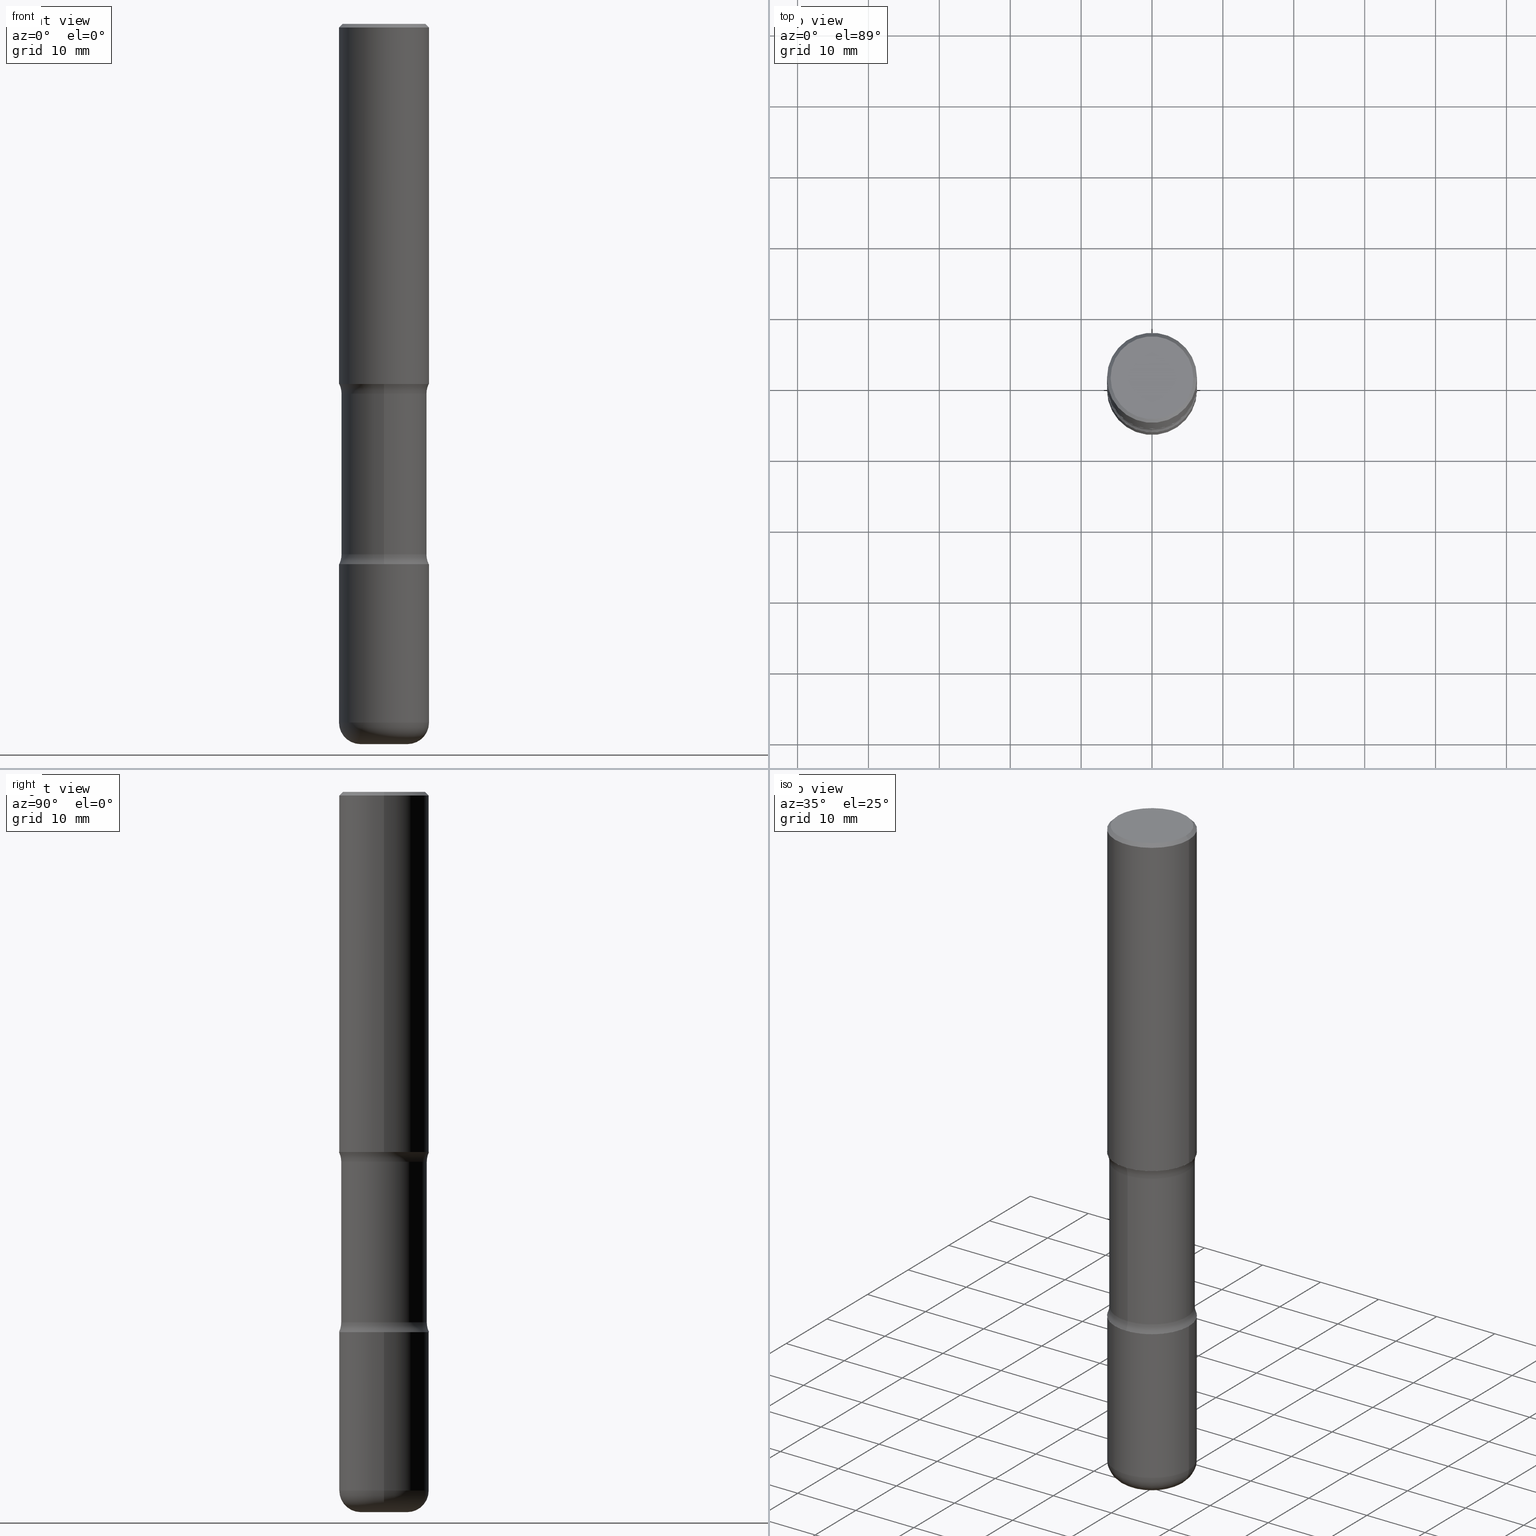
[diagram: canonical four-view strip — front | top / right | iso, engineering-drawing reading convention]
A machine part, canonical four-view strip (front | top / right | iso — engineering-drawing reading convention). The complete STEP part file that produces these views, byte-faithful:
ISO-10303-21;
HEADER;
FILE_DESCRIPTION (( 'STEP AP203' ),
    '1' );
FILE_NAME ('37890.STEP',
    '2024-03-02T01:08:06',
    ( '' ),
    ( '' ),
    'SwSTEP 2.0',
    'SolidWorks 2023',
    '' );
FILE_SCHEMA (( 'CONFIG_CONTROL_DESIGN' ));
ENDSEC;

DATA;
#1 = CARTESIAN_POINT ( 'NONE',  ( 4.976491023364875751E-29, -7.241496556518841686E-15, -2.054486236794258680 ) ) ;
#2 = EDGE_CURVE ( 'NONE', #404, #127, #257, .T. ) ;
#3 = ORIENTED_EDGE ( 'NONE', *, *, #261, .F. ) ;
#4 = CARTESIAN_POINT ( 'NONE',  ( 9.781875224740547508E-29, -1.396592535537258391E-14, -4.000000000000000888 ) ) ;
#5 = EDGE_LOOP ( 'NONE', ( #38, #325 ) ) ;
#6 = CLOSED_SHELL ( 'NONE', ( #153, #385, #218, #281, #236, #399 ) ) ;
#7 = CARTESIAN_POINT ( 'NONE',  ( 9.488418967998331206E-29, -1.354694759471140727E-14, -3.880000000000000782 ) ) ;
#8 = AXIS2_PLACEMENT_3D ( 'NONE', #173, #348, #129 ) ;
#9 = DIRECTION ( 'NONE',  ( -1.000000000000000000, 6.982962677686265922E-15, -4.876176775795935793E-29 ) ) ;
#10 = PLANE ( 'NONE',  #423 ) ;
#11 = MANIFOLD_SOLID_BREP ( 'Body-Move/Copy2[1]', #6 ) ;
#12 =( NAMED_UNIT ( * ) SI_UNIT ( $, .STERADIAN. ) SOLID_ANGLE_UNIT ( ) );
#13 = ORIENTED_EDGE ( 'NONE', *, *, #102, .F. ) ;
#14 = CARTESIAN_POINT ( 'NONE',  ( 0.2500000000000001665, -8.728703347107858632E-15, -2.000000000000000000 ) ) ;
#15 = EDGE_CURVE ( 'NONE', #316, #179, #472, .T. ) ;
#16 = DATE_AND_TIME ( #395, #374 ) ;
#17 =( LENGTH_UNIT ( ) NAMED_UNIT ( * ) SI_UNIT ( $, .METRE. ) );
#18 = EDGE_LOOP ( 'NONE', ( #103, #259, #106, #3 ) ) ;
#19 = CARTESIAN_POINT ( 'NONE',  ( -0.2500000000000000555, 1.776356839400250859E-15, -1.229733772563726866E-29 ) ) ;
#20 = AXIS2_PLACEMENT_3D ( 'NONE', #427, #361, #422 ) ;
#21 = ORIENTED_EDGE ( 'NONE', *, *, #177, .F. ) ;
#22 = DIRECTION ( 'NONE',  ( -2.445468806185136877E-29, 3.491481338843145188E-15, 1.000000000000000000 ) ) ;
#23 = CARTESIAN_POINT ( 'NONE',  ( 4.890937612370289799E-31, -6.982962677686315028E-17, -0.02000000000000006981 ) ) ;
#24 = EDGE_CURVE ( 'NONE', #425, #124, #273, .T. ) ;
#25 = DIRECTION ( 'NONE',  ( 1.000000000000000000, -6.982962677686267499E-15, 0.000000000000000000 ) ) ;
#26 = ORIENTED_EDGE ( 'NONE', *, *, #467, .F. ) ;
#27 = AXIS2_PLACEMENT_3D ( 'NONE', #206, #335, #462 ) ;
#28 = AXIS2_PLACEMENT_3D ( 'NONE', #1, #301, #430 ) ;
#29 = CARTESIAN_POINT ( 'NONE',  ( -0.2500000000000002776, -1.023433896622016898E-14, -3.000000000000000444 ) ) ;
#30 = EDGE_CURVE ( 'NONE', #404, #175, #302, .T. ) ;
#31 = FACE_OUTER_BOUND ( 'NONE', #67, .T. ) ;
#32 = CARTESIAN_POINT ( 'NONE',  ( -0.2499999999999999167, 1.675911042644703182E-15, -0.02000000000000006981 ) ) ;
#33 = CC_DESIGN_APPROVAL ( #531, ( #528 ) ) ;
#34 = AXIS2_PLACEMENT_3D ( 'NONE', #415, #36, #81 ) ;
#35 = PLANE ( 'NONE',  #512 ) ;
#36 = DIRECTION ( 'NONE',  ( 2.530378452311521502E-29, -3.369885892833230986E-15, -1.000000000000000000 ) ) ;
#37 = DIRECTION ( 'NONE',  ( 2.530378452311521502E-29, -3.369885892833230986E-15, -1.000000000000000000 ) ) ;
#38 = ORIENTED_EDGE ( 'NONE', *, *, #487, .T. ) ;
#39 = CYLINDRICAL_SURFACE ( 'NONE', #303, 0.2500000000000003331 ) ;
#40 = CLOSED_SHELL ( 'NONE', ( #375, #441, #251, #554, #160, #170 ) ) ;
#41 = ORIENTED_EDGE ( 'NONE', *, *, #286, .T. ) ;
#42 = DIRECTION ( 'NONE',  ( 2.530378452311521502E-29, -3.369885892833230986E-15, -1.000000000000000000 ) ) ;
#43 = EDGE_LOOP ( 'NONE', ( #318, #147, #98, #54 ) ) ;
#44 = DIRECTION ( 'NONE',  ( -6.982962677686266711E-15, -1.000000000000000000, 0.000000000000000000 ) ) ;
#45 = EDGE_LOOP ( 'NONE', ( #270, #534, #356, #215 ) ) ;
#46 = CARTESIAN_POINT ( 'NONE',  ( 0.1300000000000003375, -1.445473274281062700E-14, -3.880000000000000782 ) ) ;
#47 = DIRECTION ( 'NONE',  ( 1.000000000000000000, -6.860497997771530774E-15, 4.842287994361612002E-29 ) ) ;
#48 = VECTOR ( 'NONE', #157, 39.37007874015748143 ) ;
#49 = CARTESIAN_POINT ( 'NONE',  ( 1.745740669421617165E-15, 0.2499999999999933109, -2.000000000000000888 ) ) ;
#50 = CIRCLE ( 'NONE', #444, 0.2375000000000000722 ) ;
#51 = CALENDAR_DATE ( 2024, 1, 3 ) ;
#52 = PRODUCT_RELATED_PRODUCT_CATEGORY ( 'detail', '', ( #59 ) ) ;
#53 = EDGE_CURVE ( 'NONE', #447, #339, #125, .T. ) ;
#54 = ORIENTED_EDGE ( 'NONE', *, *, #365, .F. ) ;
#55 = CARTESIAN_POINT ( 'NONE',  ( 9.488418967998331206E-29, -1.354694759471140727E-14, -3.880000000000000782 ) ) ;
#56 = ORIENTED_EDGE ( 'NONE', *, *, #372, .F. ) ;
#57 = DIRECTION ( 'NONE',  ( 1.000000000000000000, 0.000000000000000000, 0.000000000000000000 ) ) ;
#58 = EDGE_LOOP ( 'NONE', ( #380, #268, #556, #21 ) ) ;
#59 = PRODUCT ( '37890', '37890', '', ( #183 ) ) ;
#60 = CARTESIAN_POINT ( 'NONE',  ( 1.606081415867840476E-15, 0.2299999999999998990, -8.030407079339231961E-16 ) ) ;
#61 = DIRECTION ( 'NONE',  ( -2.445468806185136597E-29, 3.491481338843145583E-15, 1.000000000000000000 ) ) ;
#62 = ADVANCED_FACE ( 'NONE', ( #145 ), #227, .T. ) ;
#63 = AXIS2_PLACEMENT_3D ( 'NONE', #74, #204, #244 ) ;
#64 = ORIENTED_EDGE ( 'NONE', *, *, #507, .F. ) ;
#65 =( GEOMETRIC_REPRESENTATION_CONTEXT ( 3 ) GLOBAL_UNCERTAINTY_ASSIGNED_CONTEXT ( ( #66 ) ) GLOBAL_UNIT_ASSIGNED_CONTEXT ( ( #180, #271, #12 ) ) REPRESENTATION_CONTEXT ( 'NONE', 'WORKASPACE' ) );
#66 = UNCERTAINTY_MEASURE_WITH_UNIT (LENGTH_MEASURE( 1.000000000000000082E-05 ), #180, 'distance_accuracy_value', 'NONE');
#67 = EDGE_LOOP ( 'NONE', ( #437, #229, #41, #452 ) ) ;
#68 = DIRECTION ( 'NONE',  ( 6.982962677686265133E-15, 1.000000000000000000, -2.300503573612010239E-15 ) ) ;
#69 = DATE_AND_TIME ( #51, #333 ) ;
#70 = TOROIDAL_SURFACE ( 'NONE', #27, 0.3625000000000000999, 0.1250000000000000278 ) ;
#71 = TOROIDAL_SURFACE ( 'NONE', #213, 0.1300000000000003375, 0.1199999999999999539 ) ;
#72 = CC_DESIGN_SECURITY_CLASSIFICATION ( #314, ( #528 ) ) ;
#73 = COORDINATED_UNIVERSAL_TIME_OFFSET ( 5, 0, .BEHIND. ) ;
#74 = CARTESIAN_POINT ( 'NONE',  ( 2.531323970661343863E-15, 0.3624999999999897748, -2.945513763205742652 ) ) ;
#75 = FACE_OUTER_BOUND ( 'NONE', #272, .T. ) ;
#76 = DIRECTION ( 'NONE',  ( 1.000000000000000000, -6.982962677686265922E-15, 0.000000000000000000 ) ) ;
#77 = CARTESIAN_POINT ( 'NONE',  ( -0.2500000000000003331, -1.177059075531115523E-14, -3.880000000000000782 ) ) ;
#78 = AXIS2_PLACEMENT_3D ( 'NONE', #116, #88, #292 ) ;
#79 = DIRECTION ( 'NONE',  ( -2.445468806185136597E-29, 3.491481338843145583E-15, 1.000000000000000000 ) ) ;
#80 = PLANE ( 'NONE',  #454 ) ;
#81 = DIRECTION ( 'NONE',  ( 6.982962677686265133E-15, 1.000000000000000000, -2.300503573612010239E-15 ) ) ;
#82 = CARTESIAN_POINT ( 'NONE',  ( 4.976491023364875751E-29, -7.241496556518841686E-15, -2.054486236794258680 ) ) ;
#83 = VERTEX_POINT ( 'NONE', #279 ) ;
#84 = DIRECTION ( 'NONE',  ( -2.445468806185136597E-29, 3.491481338843145583E-15, 1.000000000000000000 ) ) ;
#85 = AXIS2_PLACEMENT_3D ( 'NONE', #477, #402, #25 ) ;
#86 = ADVANCED_FACE ( 'NONE', ( #539 ), #398, .F. ) ;
#87 = DIRECTION ( 'NONE',  ( 1.000000000000000000, -6.982962677686269077E-15, 0.000000000000000000 ) ) ;
#88 = DIRECTION ( 'NONE',  ( 2.530378452311521502E-29, -3.369885892833230986E-15, -1.000000000000000000 ) ) ;
#89 = CYLINDRICAL_SURFACE ( 'NONE', #207, 0.2500000000000000555 ) ;
#90 = DIRECTION ( 'NONE',  ( 6.860497997771529985E-15, 1.000000000000000000, 0.000000000000000000 ) ) ;
#91 = ORIENTED_EDGE ( 'NONE', *, *, #358, .F. ) ;
#92 = DIRECTION ( 'NONE',  ( -2.445468806185136597E-29, 3.491481338843145583E-15, 1.000000000000000000 ) ) ;
#93 = EDGE_CURVE ( 'NONE', #83, #210, #463, .T. ) ;
#94 = CARTESIAN_POINT ( 'NONE',  ( -2.486930524192130572E-15, -0.3625000000000073164, -2.054486236794257792 ) ) ;
#95 = AXIS2_PLACEMENT_3D ( 'NONE', #371, #61, #149 ) ;
#96 = CARTESIAN_POINT ( 'NONE',  ( -0.1300000000000003375, -1.240640527709780404E-14, -4.000000000000000888 ) ) ;
#97 = VECTOR ( 'NONE', #307, 39.37007874015748143 ) ;
#98 = ORIENTED_EDGE ( 'NONE', *, *, #114, .F. ) ;
#99 = FACE_OUTER_BOUND ( 'NONE', #5, .T. ) ;
#100 = DIRECTION ( 'NONE',  ( 6.982962677686265133E-15, 1.000000000000000000, -3.450755360418014766E-15 ) ) ;
#101 = DIRECTION ( 'NONE',  ( 6.982962677686265133E-15, 1.000000000000000000, -3.278217592397110735E-15 ) ) ;
#102 = EDGE_CURVE ( 'NONE', #127, #210, #401, .T. ) ;
#103 = ORIENTED_EDGE ( 'NONE', *, *, #53, .F. ) ;
#104 = ORIENTED_EDGE ( 'NONE', *, *, #299, .T. ) ;
#105 = LENGTH_MEASURE_WITH_UNIT ( LENGTH_MEASURE( 0.02539999999999999897 ), #17 );
#106 = ORIENTED_EDGE ( 'NONE', *, *, #294, .T. ) ;
#107 = CARTESIAN_POINT ( 'NONE',  ( 7.336406418555409790E-29, -1.047444401652943635E-14, -3.000000000000000444 ) ) ;
#108 = CIRCLE ( 'NONE', #363, 0.1250000000000000278 ) ;
#109 = DIRECTION ( 'NONE',  ( 1.000000000000000000, -6.982962677686267499E-15, 0.000000000000000000 ) ) ;
#110 = CONICAL_SURFACE ( 'NONE', #8, 0.2499999999999999167, 0.7853981633974472798 ) ;
#111 = DATE_TIME_ROLE ( 'classification_date' ) ;
#112 = ORIENTED_EDGE ( 'NONE', *, *, #311, .T. ) ;
#113 = DATE_AND_TIME ( #506, #362 ) ;
#114 = EDGE_CURVE ( 'NONE', #255, #124, #413, .T. ) ;
#115 = CARTESIAN_POINT ( 'NONE',  ( 9.866784870866931853E-29, -1.384432990936266734E-14, -4.000000000000000000 ) ) ;
#116 = CARTESIAN_POINT ( 'NONE',  ( 7.203162026108633562E-29, -1.028420633753849345E-14, -2.945513763205741320 ) ) ;
#117 = CC_DESIGN_PERSON_AND_ORGANIZATION_ASSIGNMENT ( #406, #239, ( #528 ) ) ;
#118 = TOROIDAL_SURFACE ( 'NONE', #78, 0.3625000000000000999, 0.1250000000000000278 ) ;
#119 = ORIENTED_EDGE ( 'NONE', *, *, #286, .F. ) ;
#120 = CARTESIAN_POINT ( 'NONE',  ( 0.000000000000000000, 0.000000000000000000, 0.000000000000000000 ) ) ;
#121 = CC_DESIGN_PERSON_AND_ORGANIZATION_ASSIGNMENT ( #326, #283, ( #528 ) ) ;
#122 = ADVANCED_FACE ( 'NONE', ( #288 ), #70, .F. ) ;
#123 = DIRECTION ( 'NONE',  ( -0.7071067811865467956, 2.468850131082249172E-15, -0.7071067811865482389 ) ) ;
#124 = VERTEX_POINT ( 'NONE', #32 ) ;
#125 = CIRCLE ( 'NONE', #409, 0.2500000000000002776 ) ;
#126 = APPLICATION_CONTEXT ( 'configuration controlled 3d designs of mechanical parts and assemblies' ) ;
#127 = VERTEX_POINT ( 'NONE', #77 ) ;
#128 = FACE_OUTER_BOUND ( 'NONE', #43, .T. ) ;
#129 = DIRECTION ( 'NONE',  ( -1.000000000000000000, 6.982962677686267499E-15, 0.000000000000000000 ) ) ;
#130 = VERTEX_POINT ( 'NONE', #248 ) ;
#131 = LINE ( 'NONE', #468, #97 ) ;
#132 = ADVANCED_FACE ( 'NONE', ( #416 ), #80, .F. ) ;
#133 = PLANE ( 'NONE',  #495 ) ;
#134 = ORIENTED_EDGE ( 'NONE', *, *, #245, .F. ) ;
#135 = DIRECTION ( 'NONE',  ( 1.000000000000000000, -6.982962677686270655E-15, 4.883557194083114583E-29 ) ) ;
#136 = CARTESIAN_POINT ( 'NONE',  ( 0.2299999999999998990, -1.681434332853598617E-15, 1.149527484987432660E-29 ) ) ;
#137 = CIRCLE ( 'NONE', #391, 0.1250000000000000000 ) ;
#138 = DIRECTION ( 'NONE',  ( 1.000000000000000000, -6.982962677686270655E-15, 4.883557194083114583E-29 ) ) ;
#139 = PERSON_AND_ORGANIZATION_ROLE ( 'design_owner' ) ;
#140 = EDGE_LOOP ( 'NONE', ( #167, #199, #377, #489 ) ) ;
#141 = CARTESIAN_POINT ( 'NONE',  ( -0.1300000000000003375, -1.262324203822327621E-14, -3.880000000000000782 ) ) ;
#142 = FACE_OUTER_BOUND ( 'NONE', #140, .T. ) ;
#143 = DESIGN_CONTEXT ( 'detailed design', #247, 'design' ) ;
#144 = ORIENTED_EDGE ( 'NONE', *, *, #519, .T. ) ;
#145 = FACE_OUTER_BOUND ( 'NONE', #45, .T. ) ;
#146 = DIRECTION ( 'NONE',  ( 1.000000000000000000, -6.982962677686267499E-15, 4.876176775795935793E-29 ) ) ;
#147 = ORIENTED_EDGE ( 'NONE', *, *, #24, .T. ) ;
#148 = DIRECTION ( 'NONE',  ( -6.982962677686265922E-15, -1.000000000000000000, 3.369885892833230592E-15 ) ) ;
#149 = DIRECTION ( 'NONE',  ( 1.000000000000000000, -6.982962677686266711E-15, 4.876176775795935793E-29 ) ) ;
#150 = AXIS2_PLACEMENT_3D ( 'NONE', #386, #343, #515 ) ;
#151 = CALENDAR_DATE ( 2024, 1, 3 ) ;
#152 = CYLINDRICAL_SURFACE ( 'NONE', #95, 0.2500000000000003331 ) ;
#153 = ADVANCED_FACE ( 'NONE', ( #142 ), #152, .T. ) ;
#154 = APPROVAL_STATUS ( 'not_yet_approved' ) ;
#155 = DIMENSIONAL_EXPONENTS ( 1.000000000000000000, 0.000000000000000000, 0.000000000000000000, 0.000000000000000000, 0.000000000000000000, 0.000000000000000000, 0.000000000000000000 ) ;
#156 = CARTESIAN_POINT ( 'NONE',  ( 4.890937612370273194E-29, -6.982962677686291165E-15, -2.000000000000000000 ) ) ;
#157 = DIRECTION ( 'NONE',  ( -2.445468806185136877E-29, 3.491481338843145188E-15, 1.000000000000000000 ) ) ;
#158 = CIRCLE ( 'NONE', #63, 0.1250000000000000278 ) ;
#159 = DATE_AND_TIME ( #322, #352 ) ;
#160 = ADVANCED_FACE ( 'NONE', ( #543 ), #232, .F. ) ;
#161 = PERSON ( 'UNSPECIFIED', 'UNSPECIFIED', 'UNSPECIFIED', ('UNSPECIFIED'), ('UNSPECIFIED'), ('UNSPECIFIED') ) ;
#162 = EDGE_LOOP ( 'NONE', ( #91, #471 ) ) ;
#163 = ORIENTED_EDGE ( 'NONE', *, *, #93, .T. ) ;
#164 = DIRECTION ( 'NONE',  ( -1.000000000000000000, 6.982962677686267499E-15, 0.000000000000000000 ) ) ;
#165 = AXIS2_PLACEMENT_3D ( 'NONE', #156, #195, #324 ) ;
#166 = AXIS2_PLACEMENT_3D ( 'NONE', #168, #79, #76 ) ;
#167 = ORIENTED_EDGE ( 'NONE', *, *, #538, .T. ) ;
#168 = CARTESIAN_POINT ( 'NONE',  ( 4.890937612370273194E-29, -6.982962677686291165E-15, -2.000000000000000000 ) ) ;
#169 = CC_DESIGN_PERSON_AND_ORGANIZATION_ASSIGNMENT ( #501, #342, ( #314 ) ) ;
#170 = ADVANCED_FACE ( 'NONE', ( #280 ), #327, .T. ) ;
#171 = EDGE_LOOP ( 'NONE', ( #163, #265 ) ) ;
#172 = CARTESIAN_POINT ( 'NONE',  ( 0.2500000000000000555, -1.745740669421567269E-15, 1.219044193948984228E-29 ) ) ;
#173 = CARTESIAN_POINT ( 'NONE',  ( 4.890937612370289799E-31, -6.982962677686315028E-17, -0.02000000000000006981 ) ) ;
#174 = FACE_OUTER_BOUND ( 'NONE', #277, .T. ) ;
#175 = VERTEX_POINT ( 'NONE', #457 ) ;
#176 = DIRECTION ( 'NONE',  ( -2.445468806185136877E-29, 3.491481338843145188E-15, 1.000000000000000000 ) ) ;
#177 = EDGE_CURVE ( 'NONE', #124, #255, #220, .T. ) ;
#178 = AXIS2_PLACEMENT_3D ( 'NONE', #334, #417, #164 ) ;
#179 = VERTEX_POINT ( 'NONE', #446 ) ;
#180 =( CONVERSION_BASED_UNIT ( 'INCH', #105 ) LENGTH_UNIT ( ) NAMED_UNIT ( #155 ) );
#181 = ORIENTED_EDGE ( 'NONE', *, *, #487, .F. ) ;
#182 = CARTESIAN_POINT ( 'NONE',  ( 7.336406418555409790E-29, -1.047444401652943635E-14, -3.000000000000000444 ) ) ;
#183 = MECHANICAL_CONTEXT ( 'NONE', #126, 'mechanical' ) ;
#184 = DIRECTION ( 'NONE',  ( 6.982962677686265133E-15, 1.000000000000000000, -2.300503573612010239E-15 ) ) ;
#185 = DIRECTION ( 'NONE',  ( 6.982962677686265922E-15, 1.000000000000000000, -4.370956789862816416E-15 ) ) ;
#186 = EDGE_LOOP ( 'NONE', ( #526, #344 ) ) ;
#187 = AXIS2_PLACEMENT_3D ( 'NONE', #82, #382, #559 ) ;
#188 = DIRECTION ( 'NONE',  ( 2.530378452311521502E-29, -3.369885892833230986E-15, -1.000000000000000000 ) ) ;
#189 = CC_DESIGN_APPROVAL ( #544, ( #314 ) ) ;
#190 = EDGE_CURVE ( 'NONE', #234, #83, #453, .T. ) ;
#191 = ADVANCED_FACE ( 'NONE', ( #287 ), #465, .T. ) ;
#192 = DIRECTION ( 'NONE',  ( 2.530378452311521502E-29, -3.369885892833230986E-15, -1.000000000000000000 ) ) ;
#193 = DATE_TIME_ROLE ( 'creation_date' ) ;
#194 = EDGE_LOOP ( 'NONE', ( #56, #64, #421, #484 ) ) ;
#195 = DIRECTION ( 'NONE',  ( -2.438088387897960049E-29, 3.491481338843145188E-15, 1.000000000000000000 ) ) ;
#196 = EDGE_CURVE ( 'NONE', #425, #364, #198, .T. ) ;
#197 = AXIS2_PLACEMENT_3D ( 'NONE', #274, #445, #319 ) ;
#198 = CIRCLE ( 'NONE', #166, 0.2500000000000001665 ) ;
#199 = ORIENTED_EDGE ( 'NONE', *, *, #102, .T. ) ;
#200 = MANIFOLD_SOLID_BREP ( 'Body-Move/Copy2[4]', #390 ) ;
#201 = FACE_OUTER_BOUND ( 'NONE', #162, .T. ) ;
#202 = DIRECTION ( 'NONE',  ( -2.445468806185136597E-29, 3.491481338843145583E-15, 1.000000000000000000 ) ) ;
#203 = EDGE_CURVE ( 'NONE', #364, #425, #414, .T. ) ;
#204 = DIRECTION ( 'NONE',  ( -1.000000000000000000, 6.982962677686265922E-15, -4.883557194083112340E-29 ) ) ;
#205 = AXIS2_PLACEMENT_3D ( 'NONE', #366, #188, #68 ) ;
#206 = CARTESIAN_POINT ( 'NONE',  ( 7.203162026108633562E-29, -1.028420633753849345E-14, -2.945513763205741320 ) ) ;
#207 = AXIS2_PLACEMENT_3D ( 'NONE', #260, #224, #426 ) ;
#208 = EDGE_LOOP ( 'NONE', ( #26, #238, #524, #479 ) ) ;
#209 = APPROVAL ( #154, 'UNSPECIFIED' ) ;
#210 = VERTEX_POINT ( 'NONE', #29 ) ;
#211 = EDGE_CURVE ( 'NONE', #367, #403, #267, .T. ) ;
#212 = CARTESIAN_POINT ( 'NONE',  ( -1.629368274470640415E-15, -0.2375000000000139222, -3.999999999999999556 ) ) ;
#213 = AXIS2_PLACEMENT_3D ( 'NONE', #55, #84, #138 ) ;
#214 = CARTESIAN_POINT ( 'NONE',  ( -1.715124499442811104E-15, -0.2500000000000107692, -2.999999999999999556 ) ) ;
#215 = ORIENTED_EDGE ( 'NONE', *, *, #299, .F. ) ;
#216 = ORIENTED_EDGE ( 'NONE', *, *, #450, .T. ) ;
#217 = DIRECTION ( 'NONE',  ( 1.000000000000000000, -6.982962677686272233E-15, 0.000000000000000000 ) ) ;
#218 = ADVANCED_FACE ( 'NONE', ( #201 ), #35, .T. ) ;
#219 = ORIENTED_EDGE ( 'NONE', *, *, #190, .T. ) ;
#220 = CIRCLE ( 'NONE', #293, 0.2499999999999999167 ) ;
#221 = CIRCLE ( 'NONE', #503, 0.2500000000000002776 ) ;
#222 = APPLICATION_PROTOCOL_DEFINITION ( 'international standard', 'config_control_design', 1994, #126 ) ;
#223 = DIRECTION ( 'NONE',  ( -6.982962677686266711E-15, -1.000000000000000000, 3.491481338843145583E-15 ) ) ;
#224 = DIRECTION ( 'NONE',  ( -2.445468806185136597E-29, 3.491481338843145583E-15, 1.000000000000000000 ) ) ;
#225 = COORDINATED_UNIVERSAL_TIME_OFFSET ( 5, 0, .BEHIND. ) ;
#226 = ORIENTED_EDGE ( 'NONE', *, *, #450, .F. ) ;
#227 = CYLINDRICAL_SURFACE ( 'NONE', #205, 0.2375000000000000999 ) ;
#228 = EDGE_CURVE ( 'NONE', #516, #255, #378, .T. ) ;
#229 = ORIENTED_EDGE ( 'NONE', *, *, #30, .T. ) ;
#230 = VECTOR ( 'NONE', #509, 39.37007874015748143 ) ;
#231 = DIRECTION ( 'NONE',  ( 1.000000000000000000, -6.982962677686269077E-15, 0.000000000000000000 ) ) ;
#232 = PLANE ( 'NONE',  #165 ) ;
#233 = CARTESIAN_POINT ( 'NONE',  ( 0.000000000000000000, 0.000000000000000000, 0.000000000000000000 ) ) ;
#234 = VERTEX_POINT ( 'NONE', #376 ) ;
#235 = CARTESIAN_POINT ( 'NONE',  ( 9.781875224740547508E-29, -1.396592535537258391E-14, -4.000000000000000888 ) ) ;
#236 = ADVANCED_FACE ( 'NONE', ( #337 ), #39, .T. ) ;
#237 = PERSON_AND_ORGANIZATION ( #161, #420 ) ;
#238 = ORIENTED_EDGE ( 'NONE', *, *, #546, .T. ) ;
#239 = PERSON_AND_ORGANIZATION_ROLE ( 'design_supplier' ) ;
#240 = AXIS2_PLACEMENT_3D ( 'NONE', #502, #448, #146 ) ;
#241 = VECTOR ( 'NONE', #123, 39.37007874015748143 ) ;
#242 = AXIS2_PLACEMENT_3D ( 'NONE', #115, #558, #461 ) ;
#243 = CARTESIAN_POINT ( 'NONE',  ( 0.2500000000000003331, -1.745740669421569044E-15, 1.219044193948985630E-29 ) ) ;
#244 = DIRECTION ( 'NONE',  ( -6.982962677686265133E-15, -1.000000000000000000, 0.000000000000000000 ) ) ;
#245 = EDGE_CURVE ( 'NONE', #179, #403, #552, .T. ) ;
#246 = APPROVAL_ROLE ( '' ) ;
#247 = APPLICATION_CONTEXT ( 'configuration controlled 3d designs of mechanical parts and assemblies' ) ;
#248 = CARTESIAN_POINT ( 'NONE',  ( -0.2299999999999998990, 1.640996229256271928E-15, -1.135408596578605420E-29 ) ) ;
#249 = AXIS2_PLACEMENT_3D ( 'NONE', #394, #389, #266 ) ;
#250 = DIRECTION ( 'NONE',  ( 2.438088387897960049E-29, -3.491481338843145188E-15, -1.000000000000000000 ) ) ;
#251 = ADVANCED_FACE ( 'NONE', ( #505 ), #285, .T. ) ;
#252 = CARTESIAN_POINT ( 'NONE',  ( -1.715124499442836348E-15, -0.2500000000000074385, -1.999999999999999112 ) ) ;
#253 = ORIENTED_EDGE ( 'NONE', *, *, #228, .T. ) ;
#254 = DIRECTION ( 'NONE',  ( -1.000000000000000000, 6.982962677686265922E-15, -4.876176775795935793E-29 ) ) ;
#255 = VERTEX_POINT ( 'NONE', #513 ) ;
#256 = DIRECTION ( 'NONE',  ( -1.000000000000000000, 6.982962677686265922E-15, -4.883557194083112340E-29 ) ) ;
#257 = CIRCLE ( 'NONE', #431, 0.1199999999999999262 ) ;
#258 = CIRCLE ( 'NONE', #373, 0.1199999999999999262 ) ;
#259 = ORIENTED_EDGE ( 'NONE', *, *, #372, .T. ) ;
#260 = CARTESIAN_POINT ( 'NONE',  ( 0.000000000000000000, 0.000000000000000000, 0.000000000000000000 ) ) ;
#261 = EDGE_CURVE ( 'NONE', #339, #367, #158, .T. ) ;
#262 = CARTESIAN_POINT ( 'NONE',  ( 4.943898765775623630E-29, -7.288170524422749615E-15, -2.054486236794258680 ) ) ;
#263 = FACE_OUTER_BOUND ( 'NONE', #360, .T. ) ;
#264 = COORDINATED_UNIVERSAL_TIME_OFFSET ( 5, 0, .BEHIND. ) ;
#265 = ORIENTED_EDGE ( 'NONE', *, *, #392, .T. ) ;
#266 = DIRECTION ( 'NONE',  ( 1.000000000000000000, -6.982962677686270655E-15, 0.000000000000000000 ) ) ;
#267 = CIRCLE ( 'NONE', #34, 0.2375000000000000722 ) ;
#268 = ORIENTED_EDGE ( 'NONE', *, *, #196, .T. ) ;
#269 = CARTESIAN_POINT ( 'NONE',  ( 9.488418967998331206E-29, -1.354694759471140727E-14, -3.880000000000000782 ) ) ;
#270 = ORIENTED_EDGE ( 'NONE', *, *, #15, .T. ) ;
#271 =( NAMED_UNIT ( * ) PLANE_ANGLE_UNIT ( ) SI_UNIT ( $, .RADIAN. ) );
#272 = EDGE_LOOP ( 'NONE', ( #407, #253, #429, #226 ) ) ;
#273 = LINE ( 'NONE', #19, #547 ) ;
#274 = CARTESIAN_POINT ( 'NONE',  ( 7.336406418555409790E-29, -1.047444401652943635E-14, -3.000000000000000444 ) ) ;
#275 = CARTESIAN_POINT ( 'NONE',  ( 4.890937612370273194E-29, -6.982962677686291165E-15, -2.000000000000000000 ) ) ;
#276 = AXIS2_PLACEMENT_3D ( 'NONE', #291, #202, #510 ) ;
#277 = EDGE_LOOP ( 'NONE', ( #560, #350, #112, #144 ) ) ;
#278 = AXIS2_PLACEMENT_3D ( 'NONE', #269, #384, #521 ) ;
#279 = CARTESIAN_POINT ( 'NONE',  ( 0.2500000000000002776, -1.222018468595100619E-14, -3.000000000000000444 ) ) ;
#280 = FACE_OUTER_BOUND ( 'NONE', #58, .T. ) ;
#281 = ADVANCED_FACE ( 'NONE', ( #31 ), #71, .T. ) ;
#282 = COORDINATED_UNIVERSAL_TIME_OFFSET ( 5, 0, .BEHIND. ) ;
#283 = PERSON_AND_ORGANIZATION_ROLE ( 'creator' ) ;
#284 = APPROVAL_PERSON_ORGANIZATION ( #469, #544, #246 ) ;
#285 = CONICAL_SURFACE ( 'NONE', #178, 0.2499999999999999167, 0.7853981633974472798 ) ;
#286 = EDGE_CURVE ( 'NONE', #175, #234, #258, .T. ) ;
#287 = FACE_OUTER_BOUND ( 'NONE', #511, .T. ) ;
#288 = FACE_OUTER_BOUND ( 'NONE', #18, .T. ) ;
#289 = APPROVAL_ROLE ( '' ) ;
#290 = DIRECTION ( 'NONE',  ( 1.000000000000000000, -6.982962677686266711E-15, 4.876176775795935793E-29 ) ) ;
#291 = CARTESIAN_POINT ( 'NONE',  ( 4.890937612370289799E-31, -6.982962677686315028E-17, -0.02000000000000006981 ) ) ;
#292 = DIRECTION ( 'NONE',  ( 6.982962677686265922E-15, 1.000000000000000000, -3.369885892833230986E-15 ) ) ;
#293 = AXIS2_PLACEMENT_3D ( 'NONE', #23, #494, #109 ) ;
#294 = EDGE_CURVE ( 'NONE', #403, #367, #50, .T. ) ;
#295 = AXIS2_PLACEMENT_3D ( 'NONE', #523, #434, #396 ) ;
#296 = ORIENTED_EDGE ( 'NONE', *, *, #329, .T. ) ;
#297 = EDGE_LOOP ( 'NONE', ( #346, #435 ) ) ;
#298 = DIRECTION ( 'NONE',  ( -2.445468806185136597E-29, 3.491481338843145583E-15, 1.000000000000000000 ) ) ;
#299 = EDGE_CURVE ( 'NONE', #316, #367, #131, .T. ) ;
#300 = EDGE_LOOP ( 'NONE', ( #485, #306 ) ) ;
#301 = DIRECTION ( 'NONE',  ( 2.530378452311521502E-29, -3.369885892833230986E-15, -1.000000000000000000 ) ) ;
#302 = CIRCLE ( 'NONE', #481, 0.1300000000000003375 ) ;
#303 = AXIS2_PLACEMENT_3D ( 'NONE', #120, #298, #290 ) ;
#304 = APPROVAL_PERSON_ORGANIZATION ( #237, #531, #497 ) ;
#305 = DIRECTION ( 'NONE',  ( 6.982962677686265133E-15, 1.000000000000000000, -3.450755360418014766E-15 ) ) ;
#306 = ORIENTED_EDGE ( 'NONE', *, *, #196, .F. ) ;
#307 = DIRECTION ( 'NONE',  ( 2.530378452311521502E-29, -3.369885892833230592E-15, -1.000000000000000000 ) ) ;
#308 = CARTESIAN_POINT ( 'NONE',  ( 1.658453635950560525E-15, 0.2374999999999897748, -2.945513763205741764 ) ) ;
#309 = DIRECTION ( 'NONE',  ( -1.000000000000000000, 6.982962677686265922E-15, -4.876176775795935793E-29 ) ) ;
#310 = CC_DESIGN_PERSON_AND_ORGANIZATION_ASSIGNMENT ( #428, #139, ( #59 ) ) ;
#311 = EDGE_CURVE ( 'NONE', #316, #397, #137, .T. ) ;
#312 = VECTOR ( 'NONE', #440, 39.37007874015748143 ) ;
#313 = CIRCLE ( 'NONE', #381, 0.2500000000000003886 ) ;
#314 = SECURITY_CLASSIFICATION ( '', '', #455 ) ;
#315 = DIRECTION ( 'NONE',  ( 2.438088387897960049E-29, -3.491481338843145188E-15, -1.000000000000000000 ) ) ;
#316 = VERTEX_POINT ( 'NONE', #354 ) ;
#317 = CARTESIAN_POINT ( 'NONE',  ( 4.943898765775623630E-29, -7.288170524422749615E-15, -2.054486236794258680 ) ) ;
#318 = ORIENTED_EDGE ( 'NONE', *, *, #203, .T. ) ;
#319 = DIRECTION ( 'NONE',  ( 1.000000000000000000, -6.982962677686270655E-15, 0.000000000000000000 ) ) ;
#320 = EDGE_CURVE ( 'NONE', #498, #397, #483, .T. ) ;
#321 = CARTESIAN_POINT ( 'NONE',  ( 7.336406418555409790E-29, -1.047444401652943635E-14, -3.000000000000000444 ) ) ;
#322 = CALENDAR_DATE ( 2024, 1, 3 ) ;
#323 = CIRCLE ( 'NONE', #555, 0.2375000000000001277 ) ;
#324 = DIRECTION ( 'NONE',  ( 1.000000000000000000, -6.982962677686265922E-15, 4.876176775795935793E-29 ) ) ;
#325 = ORIENTED_EDGE ( 'NONE', *, *, #514, .T. ) ;
#326 = PERSON_AND_ORGANIZATION ( #161, #420 ) ;
#327 = CYLINDRICAL_SURFACE ( 'NONE', #240, 0.2500000000000000555 ) ;
#328 = CC_DESIGN_DATE_AND_TIME_ASSIGNMENT ( #113, #193, ( #433 ) ) ;
#329 = EDGE_CURVE ( 'NONE', #127, #234, #482, .T. ) ;
#330 = AXIS2_PLACEMENT_3D ( 'NONE', #317, #368, #100 ) ;
#331 = AXIS2_PLACEMENT_3D ( 'NONE', #7, #92, #135 ) ;
#332 = CARTESIAN_POINT ( 'NONE',  ( 0.2499999999999999167, -1.784954126219745400E-15, -0.02000000000000006981 ) ) ;
#333 = LOCAL_TIME ( 20, 8, 6.000000000000000000, #264 ) ;
#334 = CARTESIAN_POINT ( 'NONE',  ( 4.890937612370289799E-31, -6.982962677686315028E-17, -0.02000000000000006981 ) ) ;
#335 = DIRECTION ( 'NONE',  ( 2.530378452311521502E-29, -3.369885892833230986E-15, -1.000000000000000000 ) ) ;
#336 = ADVANCED_FACE ( 'NONE', ( #518 ), #530, .F. ) ;
#337 = FACE_OUTER_BOUND ( 'NONE', #551, .T. ) ;
#338 = CARTESIAN_POINT ( 'NONE',  ( -0.2499999999999999167, 1.675911042644703182E-15, -0.02000000000000006981 ) ) ;
#339 = VERTEX_POINT ( 'NONE', #473 ) ;
#340 = CC_DESIGN_PERSON_AND_ORGANIZATION_ASSIGNMENT ( #408, #451, ( #433 ) ) ;
#341 = CIRCLE ( 'NONE', #369, 0.1300000000000003375 ) ;
#342 = PERSON_AND_ORGANIZATION_ROLE ( 'classification_officer' ) ;
#343 = DIRECTION ( 'NONE',  ( -2.445468806185136597E-29, 3.491481338843145583E-15, 1.000000000000000000 ) ) ;
#344 = ORIENTED_EDGE ( 'NONE', *, *, #320, .F. ) ;
#345 = DIRECTION ( 'NONE',  ( 1.000000000000000000, -6.982962677686265922E-15, 0.000000000000000000 ) ) ;
#346 = ORIENTED_EDGE ( 'NONE', *, *, #507, .T. ) ;
#347 = DIRECTION ( 'NONE',  ( 6.860497997771532351E-15, 1.000000000000000000, 0.000000000000000000 ) ) ;
#348 = DIRECTION ( 'NONE',  ( 2.445468806185136597E-29, -3.491481338843145583E-15, -1.000000000000000000 ) ) ;
#349 = APPROVAL_STATUS ( 'not_yet_approved' ) ;
#350 = ORIENTED_EDGE ( 'NONE', *, *, #15, .F. ) ;
#351 = CARTESIAN_POINT ( 'NONE',  ( 2.531323970661321775E-15, 0.3624999999999928280, -2.054486236794260012 ) ) ;
#352 = LOCAL_TIME ( 20, 8, 6.000000000000000000, #73 ) ;
#353 = ORIENTED_EDGE ( 'NONE', *, *, #467, .T. ) ;
#354 = CARTESIAN_POINT ( 'NONE',  ( 1.658453635950538436E-15, 0.2374999999999928557, -2.054486236794259568 ) ) ;
#355 = PRODUCT_DEFINITION_SHAPE ( 'NONE', 'NONE',  #433 ) ;
#356 = ORIENTED_EDGE ( 'NONE', *, *, #211, .F. ) ;
#357 = LINE ( 'NONE', #172, #496 ) ;
#358 = EDGE_CURVE ( 'NONE', #175, #404, #341, .T. ) ;
#359 = DIRECTION ( 'NONE',  ( 0.000000000000000000, 0.000000000000000000, 1.000000000000000000 ) ) ;
#360 = EDGE_LOOP ( 'NONE', ( #536, #474, #492, #119 ) ) ;
#361 = DIRECTION ( 'NONE',  ( 2.530378452311521502E-29, -3.369885892833230986E-15, -1.000000000000000000 ) ) ;
#362 = LOCAL_TIME ( 20, 8, 6.000000000000000000, #412 ) ;
#363 = AXIS2_PLACEMENT_3D ( 'NONE', #529, #478, #347 ) ;
#364 = VERTEX_POINT ( 'NONE', #14 ) ;
#365 = EDGE_CURVE ( 'NONE', #364, #255, #357, .T. ) ;
#366 = CARTESIAN_POINT ( 'NONE',  ( 9.866784870866931853E-29, -1.384432990936266734E-14, -4.000000000000000000 ) ) ;
#367 = VERTEX_POINT ( 'NONE', #308 ) ;
#368 = DIRECTION ( 'NONE',  ( 2.530378452311521502E-29, -3.369885892833230986E-15, -1.000000000000000000 ) ) ;
#369 = AXIS2_PLACEMENT_3D ( 'NONE', #4, #387, #87 ) ;
#370 = APPROVAL_DATE_TIME ( #159, #209 ) ;
#371 = CARTESIAN_POINT ( 'NONE',  ( 0.000000000000000000, 0.000000000000000000, 0.000000000000000000 ) ) ;
#372 = EDGE_CURVE ( 'NONE', #447, #403, #108, .T. ) ;
#373 = AXIS2_PLACEMENT_3D ( 'NONE', #46, #223, #217 ) ;
#374 = LOCAL_TIME ( 20, 8, 6.000000000000000000, #225 ) ;
#375 = ADVANCED_FACE ( 'NONE', ( #128 ), #89, .T. ) ;
#376 = CARTESIAN_POINT ( 'NONE',  ( 0.2500000000000003331, -1.529268826413297711E-14, -3.880000000000000782 ) ) ;
#377 = ORIENTED_EDGE ( 'NONE', *, *, #93, .F. ) ;
#378 = LINE ( 'NONE', #332, #522 ) ;
#379 = MANIFOLD_SOLID_BREP ( 'Body-Move/Copy2[2]', #40 ) ;
#380 = ORIENTED_EDGE ( 'NONE', *, *, #24, .F. ) ;
#381 = AXIS2_PLACEMENT_3D ( 'NONE', #491, #439, #101 ) ;
#382 = DIRECTION ( 'NONE',  ( 2.530378452311521502E-29, -3.369885892833230986E-15, -1.000000000000000000 ) ) ;
#383 = EDGE_LOOP ( 'NONE', ( #553, #181, #216, #418 ) ) ;
#384 = DIRECTION ( 'NONE',  ( -2.445468806185136597E-29, 3.491481338843145583E-15, 1.000000000000000000 ) ) ;
#385 = ADVANCED_FACE ( 'NONE', ( #263 ), #432, .T. ) ;
#386 = CARTESIAN_POINT ( 'NONE',  ( 0.000000000000000000, 0.000000000000000000, 0.000000000000000000 ) ) ;
#387 = DIRECTION ( 'NONE',  ( -2.445468806185136597E-29, 3.491481338843145583E-15, 1.000000000000000000 ) ) ;
#388 = LINE ( 'NONE', #338, #241 ) ;
#389 = DIRECTION ( 'NONE',  ( -2.445468806185136597E-29, 3.491481338843145583E-15, 1.000000000000000000 ) ) ;
#390 = CLOSED_SHELL ( 'NONE', ( #62, #122, #336, #500, #132, #86, #476, #191 ) ) ;
#391 = AXIS2_PLACEMENT_3D ( 'NONE', #351, #256, #44 ) ;
#392 = EDGE_CURVE ( 'NONE', #210, #83, #410, .T. ) ;
#393 = FACE_OUTER_BOUND ( 'NONE', #171, .T. ) ;
#394 = CARTESIAN_POINT ( 'NONE',  ( 7.336406418555409790E-29, -1.047444401652943635E-14, -3.000000000000000444 ) ) ;
#395 = CALENDAR_DATE ( 2024, 1, 3 ) ;
#396 = DIRECTION ( 'NONE',  ( 1.000000000000000000, -6.982962677686267499E-15, 4.876176775795936353E-29 ) ) ;
#397 = VERTEX_POINT ( 'NONE', #49 ) ;
#398 = PLANE ( 'NONE',  #443 ) ;
#399 = ADVANCED_FACE ( 'NONE', ( #393 ), #10, .F. ) ;
#400 = CIRCLE ( 'NONE', #150, 0.2299999999999998990 ) ;
#401 = LINE ( 'NONE', #490, #312 ) ;
#402 = DIRECTION ( 'NONE',  ( -2.445468806185136597E-29, 3.491481338843145583E-15, 1.000000000000000000 ) ) ;
#403 = VERTEX_POINT ( 'NONE', #480 ) ;
#404 = VERTEX_POINT ( 'NONE', #96 ) ;
#405 = DIRECTION ( 'NONE',  ( 6.982962677686265922E-15, 1.000000000000000000, -3.369885892833230592E-15 ) ) ;
#406 = PERSON_AND_ORGANIZATION ( #161, #420 ) ;
#407 = ORIENTED_EDGE ( 'NONE', *, *, #514, .F. ) ;
#408 = PERSON_AND_ORGANIZATION ( #161, #420 ) ;
#409 = AXIS2_PLACEMENT_3D ( 'NONE', #107, #192, #493 ) ;
#410 = CIRCLE ( 'NONE', #249, 0.2500000000000002776 ) ;
#411 = DIRECTION ( 'NONE',  ( -2.445468806185136597E-29, 3.491481338843145583E-15, 1.000000000000000000 ) ) ;
#412 = COORDINATED_UNIVERSAL_TIME_OFFSET ( 5, 0, .BEHIND. ) ;
#413 = CIRCLE ( 'NONE', #276, 0.2499999999999999167 ) ;
#414 = CIRCLE ( 'NONE', #548, 0.2500000000000001665 ) ;
#415 = CARTESIAN_POINT ( 'NONE',  ( 7.198535619023675570E-29, -1.029083161580289368E-14, -2.945513763205741320 ) ) ;
#416 = FACE_OUTER_BOUND ( 'NONE', #186, .T. ) ;
#417 = DIRECTION ( 'NONE',  ( 2.445468806185136597E-29, -3.491481338843145583E-15, -1.000000000000000000 ) ) ;
#418 = ORIENTED_EDGE ( 'NONE', *, *, #177, .T. ) ;
#419 = CARTESIAN_POINT ( 'NONE',  ( 4.890937612370273194E-29, -6.982962677686291165E-15, -2.000000000000000000 ) ) ;
#420 = ORGANIZATION ( 'UNSPECIFIED', 'UNSPECIFIED', '' ) ;
#421 = ORIENTED_EDGE ( 'NONE', *, *, #261, .T. ) ;
#422 = DIRECTION ( 'NONE',  ( 6.982962677686265133E-15, 1.000000000000000000, -3.278217592397110735E-15 ) ) ;
#423 = AXIS2_PLACEMENT_3D ( 'NONE', #182, #527, #309 ) ;
#424 = AXIS2_PLACEMENT_3D ( 'NONE', #94, #47, #90 ) ;
#425 = VERTEX_POINT ( 'NONE', #436 ) ;
#426 = DIRECTION ( 'NONE',  ( 1.000000000000000000, -6.982962677686267499E-15, 4.876176775795935793E-29 ) ) ;
#427 = CARTESIAN_POINT ( 'NONE',  ( 4.806027966243888288E-29, -7.104558123696206156E-15, -2.000000000000000000 ) ) ;
#428 = PERSON_AND_ORGANIZATION ( #161, #420 ) ;
#429 = ORIENTED_EDGE ( 'NONE', *, *, #114, .T. ) ;
#430 = DIRECTION ( 'NONE',  ( 6.982962677686265922E-15, 1.000000000000000000, -3.369885892833230986E-15 ) ) ;
#431 = AXIS2_PLACEMENT_3D ( 'NONE', #141, #499, #537 ) ;
#432 = TOROIDAL_SURFACE ( 'NONE', #331, 0.1300000000000003375, 0.1199999999999999539 ) ;
#433 = PRODUCT_DEFINITION ( 'UNKNOWN', '', #528, #143 ) ;
#434 = DIRECTION ( 'NONE',  ( -2.445468806185136597E-29, 3.491481338843145583E-15, 1.000000000000000000 ) ) ;
#435 = ORIENTED_EDGE ( 'NONE', *, *, #53, .T. ) ;
#436 = CARTESIAN_POINT ( 'NONE',  ( -0.2500000000000001665, -1.750039312831323809E-15, -2.000000000000000000 ) ) ;
#437 = ORIENTED_EDGE ( 'NONE', *, *, #2, .F. ) ;
#438 = DIRECTION ( 'NONE',  ( -2.445468806185136597E-29, 3.491481338843145583E-15, 1.000000000000000000 ) ) ;
#439 = DIRECTION ( 'NONE',  ( 2.530378452311521502E-29, -3.369885892833230986E-15, -1.000000000000000000 ) ) ;
#440 = DIRECTION ( 'NONE',  ( -2.445468806185136877E-29, 3.491481338843145188E-15, 1.000000000000000000 ) ) ;
#441 = ADVANCED_FACE ( 'NONE', ( #75 ), #110, .T. ) ;
#442 = ORIENTED_EDGE ( 'NONE', *, *, #294, .F. ) ;
#443 = AXIS2_PLACEMENT_3D ( 'NONE', #321, #532, #148 ) ;
#444 = AXIS2_PLACEMENT_3D ( 'NONE', #525, #475, #184 ) ;
#445 = DIRECTION ( 'NONE',  ( -2.445468806185136597E-29, 3.491481338843145583E-15, 1.000000000000000000 ) ) ;
#446 = CARTESIAN_POINT ( 'NONE',  ( -1.672246386956763723E-15, -0.2375000000000074274, -2.054486236794258236 ) ) ;
#447 = VERTEX_POINT ( 'NONE', #214 ) ;
#448 = DIRECTION ( 'NONE',  ( -2.445468806185136597E-29, 3.491481338843145583E-15, 1.000000000000000000 ) ) ;
#449 = SHAPE_DEFINITION_REPRESENTATION ( #355, #549 ) ;
#450 = EDGE_CURVE ( 'NONE', #130, #124, #388, .T. ) ;
#451 = PERSON_AND_ORGANIZATION_ROLE ( 'creator' ) ;
#452 = ORIENTED_EDGE ( 'NONE', *, *, #329, .F. ) ;
#453 = LINE ( 'NONE', #243, #48 ) ;
#454 = AXIS2_PLACEMENT_3D ( 'NONE', #275, #533, #405 ) ;
#455 = SECURITY_CLASSIFICATION_LEVEL ( 'unclassified' ) ;
#456 = CIRCLE ( 'NONE', #85, 0.2500000000000003886 ) ;
#457 = CARTESIAN_POINT ( 'NONE',  ( 0.1300000000000003375, -1.487371050347180047E-14, -4.000000000000000888 ) ) ;
#458 = DIRECTION ( 'NONE',  ( 0.7071067811865467956, -7.319954787623254468E-15, -0.7071067811865482389 ) ) ;
#459 = APPROVAL_STATUS ( 'not_yet_approved' ) ;
#460 = CC_DESIGN_DATE_AND_TIME_ASSIGNMENT ( #69, #111, ( #314 ) ) ;
#461 = DIRECTION ( 'NONE',  ( 6.982962677686265133E-15, 1.000000000000000000, -2.300503573612010239E-15 ) ) ;
#462 = DIRECTION ( 'NONE',  ( 6.982962677686265922E-15, 1.000000000000000000, -3.369885892833230986E-15 ) ) ;
#463 = CIRCLE ( 'NONE', #197, 0.2500000000000002776 ) ;
#464 = TOROIDAL_SURFACE ( 'NONE', #187, 0.3625000000000000999, 0.1250000000000000000 ) ;
#465 = CYLINDRICAL_SURFACE ( 'NONE', #242, 0.2375000000000000999 ) ;
#466 = ORIENTED_EDGE ( 'NONE', *, *, #392, .F. ) ;
#467 = EDGE_CURVE ( 'NONE', #179, #316, #323, .T. ) ;
#468 = CARTESIAN_POINT ( 'NONE',  ( 1.658453635950587543E-15, 0.2374999999999862776, -4.000000000000000888 ) ) ;
#469 = PERSON_AND_ORGANIZATION ( #161, #420 ) ;
#470 = CC_DESIGN_APPROVAL ( #209, ( #433 ) ) ;
#471 = ORIENTED_EDGE ( 'NONE', *, *, #30, .F. ) ;
#472 = CIRCLE ( 'NONE', #330, 0.2375000000000001277 ) ;
#473 = CARTESIAN_POINT ( 'NONE',  ( 1.745740669421641422E-15, 0.2499999999999897582, -3.000000000000000888 ) ) ;
#474 = ORIENTED_EDGE ( 'NONE', *, *, #2, .T. ) ;
#475 = DIRECTION ( 'NONE',  ( 2.530378452311521502E-29, -3.369885892833230986E-15, -1.000000000000000000 ) ) ;
#476 = ADVANCED_FACE ( 'NONE', ( #508 ), #118, .F. ) ;
#477 = CARTESIAN_POINT ( 'NONE',  ( 9.488418967998331206E-29, -1.354694759471140727E-14, -3.880000000000000782 ) ) ;
#478 = DIRECTION ( 'NONE',  ( 1.000000000000000000, -6.860497997771530774E-15, 4.842287994361612002E-29 ) ) ;
#479 = ORIENTED_EDGE ( 'NONE', *, *, #311, .F. ) ;
#480 = CARTESIAN_POINT ( 'NONE',  ( -1.672246386956739071E-15, -0.2375000000000103417, -2.945513763205740876 ) ) ;
#481 = AXIS2_PLACEMENT_3D ( 'NONE', #235, #438, #231 ) ;
#482 = CIRCLE ( 'NONE', #278, 0.2500000000000003886 ) ;
#483 = CIRCLE ( 'NONE', #20, 0.2500000000000003886 ) ;
#484 = ORIENTED_EDGE ( 'NONE', *, *, #211, .T. ) ;
#485 = ORIENTED_EDGE ( 'NONE', *, *, #203, .F. ) ;
#486 = APPROVAL_DATE_TIME ( #16, #544 ) ;
#487 = EDGE_CURVE ( 'NONE', #130, #516, #400, .T. ) ;
#488 = APPLICATION_PROTOCOL_DEFINITION ( 'international standard', 'config_control_design', 1994, #247 ) ;
#489 = ORIENTED_EDGE ( 'NONE', *, *, #190, .F. ) ;
#490 = CARTESIAN_POINT ( 'NONE',  ( -0.2500000000000003331, 1.776356839400252831E-15, -1.229733772563727987E-29 ) ) ;
#491 = CARTESIAN_POINT ( 'NONE',  ( 4.806027966243888288E-29, -7.104558123696206156E-15, -2.000000000000000000 ) ) ;
#492 = ORIENTED_EDGE ( 'NONE', *, *, #538, .F. ) ;
#493 = DIRECTION ( 'NONE',  ( 6.982962677686265922E-15, 1.000000000000000000, -4.370956789862816416E-15 ) ) ;
#494 = DIRECTION ( 'NONE',  ( -2.445468806185136597E-29, 3.491481338843145583E-15, 1.000000000000000000 ) ) ;
#495 = AXIS2_PLACEMENT_3D ( 'NONE', #60, #315, #9 ) ;
#496 = VECTOR ( 'NONE', #176, 39.37007874015748143 ) ;
#497 = APPROVAL_ROLE ( '' ) ;
#498 = VERTEX_POINT ( 'NONE', #252 ) ;
#499 = DIRECTION ( 'NONE',  ( 7.105427357601001859E-15, 1.000000000000000000, -3.491481338843145583E-15 ) ) ;
#500 = ADVANCED_FACE ( 'NONE', ( #174 ), #464, .F. ) ;
#501 = PERSON_AND_ORGANIZATION ( #161, #420 ) ;
#502 = CARTESIAN_POINT ( 'NONE',  ( 0.000000000000000000, 0.000000000000000000, 0.000000000000000000 ) ) ;
#503 = AXIS2_PLACEMENT_3D ( 'NONE', #520, #37, #185 ) ;
#504 = AXIS2_PLACEMENT_3D ( 'NONE', #233, #359, #57 ) ;
#505 = FACE_OUTER_BOUND ( 'NONE', #383, .T. ) ;
#506 = CALENDAR_DATE ( 2024, 1, 3 ) ;
#507 = EDGE_CURVE ( 'NONE', #339, #447, #221, .T. ) ;
#508 = FACE_OUTER_BOUND ( 'NONE', #194, .T. ) ;
#509 = DIRECTION ( 'NONE',  ( 2.530378452311521502E-29, -3.369885892833230592E-15, -1.000000000000000000 ) ) ;
#510 = DIRECTION ( 'NONE',  ( 1.000000000000000000, -6.982962677686267499E-15, 0.000000000000000000 ) ) ;
#511 = EDGE_LOOP ( 'NONE', ( #134, #353, #104, #442 ) ) ;
#512 = AXIS2_PLACEMENT_3D ( 'NONE', #517, #250, #254 ) ;
#513 = CARTESIAN_POINT ( 'NONE',  ( 0.2499999999999999167, -1.784954126219745400E-15, -0.02000000000000006981 ) ) ;
#514 = EDGE_CURVE ( 'NONE', #516, #130, #540, .T. ) ;
#515 = DIRECTION ( 'NONE',  ( 1.000000000000000000, -6.982962677686267499E-15, 4.876176775795936353E-29 ) ) ;
#516 = VERTEX_POINT ( 'NONE', #136 ) ;
#517 = CARTESIAN_POINT ( 'NONE',  ( -1.957443286563838823E-29, -3.077729762407571596E-14, -4.000000000000000000 ) ) ;
#518 = FACE_OUTER_BOUND ( 'NONE', #208, .T. ) ;
#519 = EDGE_CURVE ( 'NONE', #397, #498, #313, .T. ) ;
#520 = CARTESIAN_POINT ( 'NONE',  ( 7.336406418555409790E-29, -1.047444401652943635E-14, -3.000000000000000444 ) ) ;
#521 = DIRECTION ( 'NONE',  ( 1.000000000000000000, -6.982962677686267499E-15, 0.000000000000000000 ) ) ;
#522 = VECTOR ( 'NONE', #458, 39.37007874015748143 ) ;
#523 = CARTESIAN_POINT ( 'NONE',  ( 0.000000000000000000, 0.000000000000000000, 0.000000000000000000 ) ) ;
#524 = ORIENTED_EDGE ( 'NONE', *, *, #320, .T. ) ;
#525 = CARTESIAN_POINT ( 'NONE',  ( 7.198535619023675570E-29, -1.029083161580289368E-14, -2.945513763205741320 ) ) ;
#526 = ORIENTED_EDGE ( 'NONE', *, *, #519, .F. ) ;
#527 = DIRECTION ( 'NONE',  ( 2.438088387897960049E-29, -3.491481338843145188E-15, -1.000000000000000000 ) ) ;
#528 = PRODUCT_DEFINITION_FORMATION_WITH_SPECIFIED_SOURCE ( 'ANY', '', #59, .NOT_KNOWN. ) ;
#529 = CARTESIAN_POINT ( 'NONE',  ( -2.486930524192108484E-15, -0.3625000000000104250, -2.945513763205740432 ) ) ;
#530 = TOROIDAL_SURFACE ( 'NONE', #28, 0.3625000000000000999, 0.1250000000000000000 ) ;
#531 = APPROVAL ( #459, 'UNSPECIFIED' ) ;
#532 = DIRECTION ( 'NONE',  ( -2.530378452311521502E-29, 3.369885892833230592E-15, 1.000000000000000000 ) ) ;
#533 = DIRECTION ( 'NONE',  ( 2.530378452311521502E-29, -3.369885892833230592E-15, -1.000000000000000000 ) ) ;
#534 = ORIENTED_EDGE ( 'NONE', *, *, #245, .T. ) ;
#535 = PERSON_AND_ORGANIZATION ( #161, #420 ) ;
#536 = ORIENTED_EDGE ( 'NONE', *, *, #358, .T. ) ;
#537 = DIRECTION ( 'NONE',  ( -1.000000000000000000, 7.105427357601011325E-15, 0.000000000000000000 ) ) ;
#538 = EDGE_CURVE ( 'NONE', #234, #127, #456, .T. ) ;
#539 = FACE_OUTER_BOUND ( 'NONE', #297, .T. ) ;
#540 = CIRCLE ( 'NONE', #295, 0.2299999999999998990 ) ;
#541 = DATE_AND_TIME ( #151, #545 ) ;
#542 = APPROVAL_DATE_TIME ( #541, #531 ) ;
#543 = FACE_OUTER_BOUND ( 'NONE', #300, .T. ) ;
#544 = APPROVAL ( #349, 'UNSPECIFIED' ) ;
#545 = LOCAL_TIME ( 20, 8, 6.000000000000000000, #282 ) ;
#546 = EDGE_CURVE ( 'NONE', #179, #498, #557, .T. ) ;
#547 = VECTOR ( 'NONE', #22, 39.37007874015748143 ) ;
#548 = AXIS2_PLACEMENT_3D ( 'NONE', #419, #411, #345 ) ;
#549 = ADVANCED_BREP_SHAPE_REPRESENTATION ( '37890', ( #11, #379, #200, #504 ), #65 ) ;
#550 = APPROVAL_PERSON_ORGANIZATION ( #535, #209, #289 ) ;
#551 = EDGE_LOOP ( 'NONE', ( #13, #296, #219, #466 ) ) ;
#552 = LINE ( 'NONE', #212, #230 ) ;
#553 = ORIENTED_EDGE ( 'NONE', *, *, #228, .F. ) ;
#554 = ADVANCED_FACE ( 'NONE', ( #99 ), #133, .F. ) ;
#555 = AXIS2_PLACEMENT_3D ( 'NONE', #262, #42, #305 ) ;
#556 = ORIENTED_EDGE ( 'NONE', *, *, #365, .T. ) ;
#557 = CIRCLE ( 'NONE', #424, 0.1250000000000000000 ) ;
#558 = DIRECTION ( 'NONE',  ( 2.530378452311521502E-29, -3.369885892833230986E-15, -1.000000000000000000 ) ) ;
#559 = DIRECTION ( 'NONE',  ( 6.982962677686265922E-15, 1.000000000000000000, -3.369885892833230986E-15 ) ) ;
#560 = ORIENTED_EDGE ( 'NONE', *, *, #546, .F. ) ;
ENDSEC;
END-ISO-10303-21;
